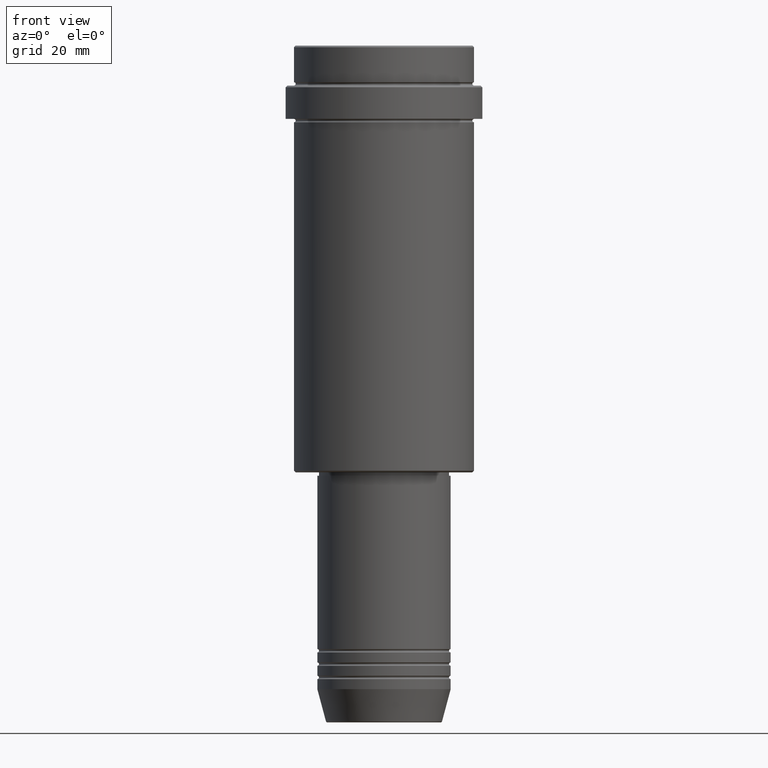
[diagram: clean part render]
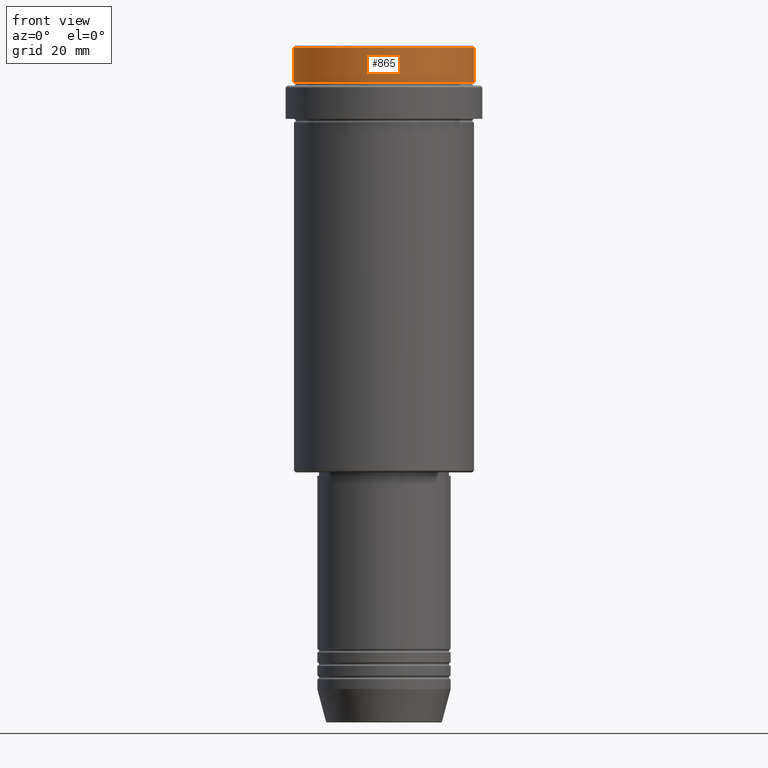
[diagram: same view with one face highlighted and labeled with its STEP entity id]
A machine part, front view. The second image highlights one B-rep face of the part: STEP entity #865.
In plain terms, the highlighted cylindrical surface (partial cylindrical patch) has radius 27 mm, axis along (-0, -0, 1).
Its self-contained STEP definition (entity closure, byte-faithful):
#64 = DIRECTION ( 'NONE',  ( 1.000000000000000000, 0.000000000000000000, 0.000000000000000000 ) ) ;
#143 = LINE ( 'NONE', #1013, #465 ) ;
#152 = EDGE_CURVE ( 'NONE', #859, #827, #877, .T. ) ;
#219 = VERTEX_POINT ( 'NONE', #1029 ) ;
#233 = DIRECTION ( 'NONE',  ( -0.000000000000000000, -0.000000000000000000, 1.000000000000000000 ) ) ;
#240 = DIRECTION ( 'NONE',  ( -0.000000000000000000, -0.000000000000000000, 1.000000000000000000 ) ) ;
#269 = ORIENTED_EDGE ( 'NONE', *, *, #1098, .T. ) ;
#276 = ORIENTED_EDGE ( 'NONE', *, *, #698, .F. ) ;
#339 = CYLINDRICAL_SURFACE ( 'NONE', #858, 27.00000000000000355 ) ;
#407 = EDGE_LOOP ( 'NONE', ( #276, #1310, #269, #1241 ) ) ;
#412 = FACE_OUTER_BOUND ( 'NONE', #407, .T. ) ;
#465 = VECTOR ( 'NONE', #240, 1000.000000000000000 ) ;
#522 = CARTESIAN_POINT ( 'NONE',  ( 27.00000000000000355, 0.000000000000000000, -0.4999999999999796274 ) ) ;
#588 = LINE ( 'NONE', #798, #952 ) ;
#611 = CARTESIAN_POINT ( 'NONE',  ( 0.000000000000000000, 0.000000000000000000, -11.00000000000000178 ) ) ;
#617 = CARTESIAN_POINT ( 'NONE',  ( -27.00000000000000355, 3.306546357697854128E-15, -0.4999999999999796274 ) ) ;
#646 = DIRECTION ( 'NONE',  ( -0.000000000000000000, -0.000000000000000000, 1.000000000000000000 ) ) ;
#665 = DIRECTION ( 'NONE',  ( 0.000000000000000000, 0.000000000000000000, -1.000000000000000000 ) ) ;
#698 = EDGE_CURVE ( 'NONE', #1131, #827, #143, .T. ) ;
#744 = CIRCLE ( 'NONE', #787, 27.00000000000000355 ) ;
#776 = EDGE_CURVE ( 'NONE', #1131, #219, #744, .T. ) ;
#787 = AXIS2_PLACEMENT_3D ( 'NONE', #611, #941, #64 ) ;
#798 = CARTESIAN_POINT ( 'NONE',  ( 27.00000000000000355, 0.000000000000000000, 0.000000000000000000 ) ) ;
#827 = VERTEX_POINT ( 'NONE', #617 ) ;
#858 = AXIS2_PLACEMENT_3D ( 'NONE', #986, #646, #1006 ) ;
#859 = VERTEX_POINT ( 'NONE', #522 ) ;
#865 = ADVANCED_FACE ( 'NONE', ( #412 ), #339, .T. ) ;
#877 = CIRCLE ( 'NONE', #1173, 27.00000000000000355 ) ;
#941 = DIRECTION ( 'NONE',  ( -0.000000000000000000, -0.000000000000000000, 1.000000000000000000 ) ) ;
#952 = VECTOR ( 'NONE', #233, 1000.000000000000000 ) ;
#986 = CARTESIAN_POINT ( 'NONE',  ( 0.000000000000000000, 0.000000000000000000, 0.000000000000000000 ) ) ;
#1006 = DIRECTION ( 'NONE',  ( 1.000000000000000000, 0.000000000000000000, 0.000000000000000000 ) ) ;
#1013 = CARTESIAN_POINT ( 'NONE',  ( -27.00000000000000355, 3.306546357697854128E-15, 0.000000000000000000 ) ) ;
#1029 = CARTESIAN_POINT ( 'NONE',  ( 27.00000000000000355, 0.000000000000000000, -11.00000000000000178 ) ) ;
#1098 = EDGE_CURVE ( 'NONE', #219, #859, #588, .T. ) ;
#1131 = VERTEX_POINT ( 'NONE', #1234 ) ;
#1173 = AXIS2_PLACEMENT_3D ( 'NONE', #1211, #665, #1230 ) ;
#1211 = CARTESIAN_POINT ( 'NONE',  ( 0.000000000000000000, 0.000000000000000000, -0.4999999999999796274 ) ) ;
#1230 = DIRECTION ( 'NONE',  ( 1.000000000000000000, 0.000000000000000000, 0.000000000000000000 ) ) ;
#1234 = CARTESIAN_POINT ( 'NONE',  ( -27.00000000000000355, 3.306546357697854128E-15, -11.00000000000000178 ) ) ;
#1241 = ORIENTED_EDGE ( 'NONE', *, *, #152, .T. ) ;
#1310 = ORIENTED_EDGE ( 'NONE', *, *, #776, .T. ) ;